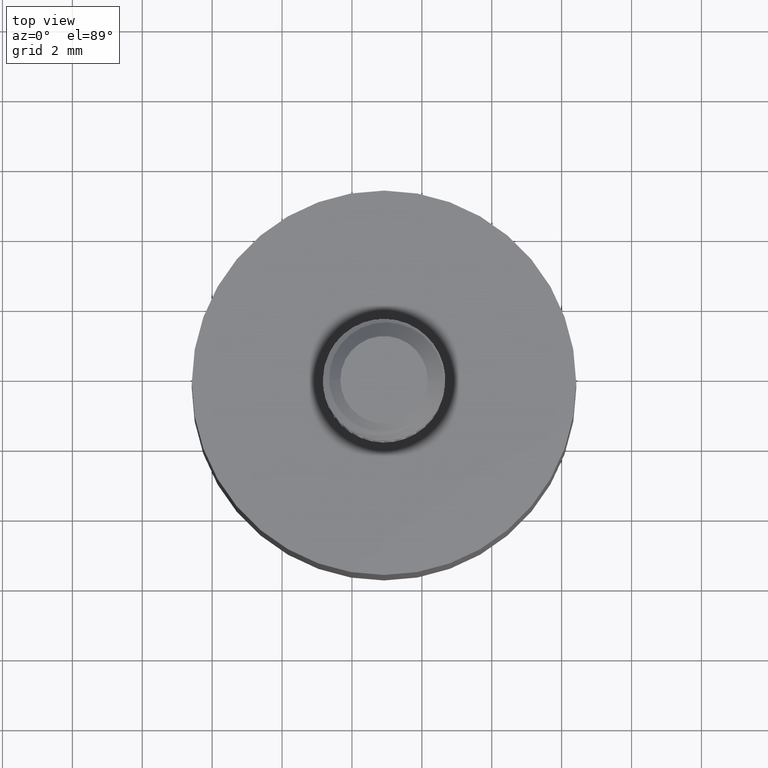
[diagram: clean part render]
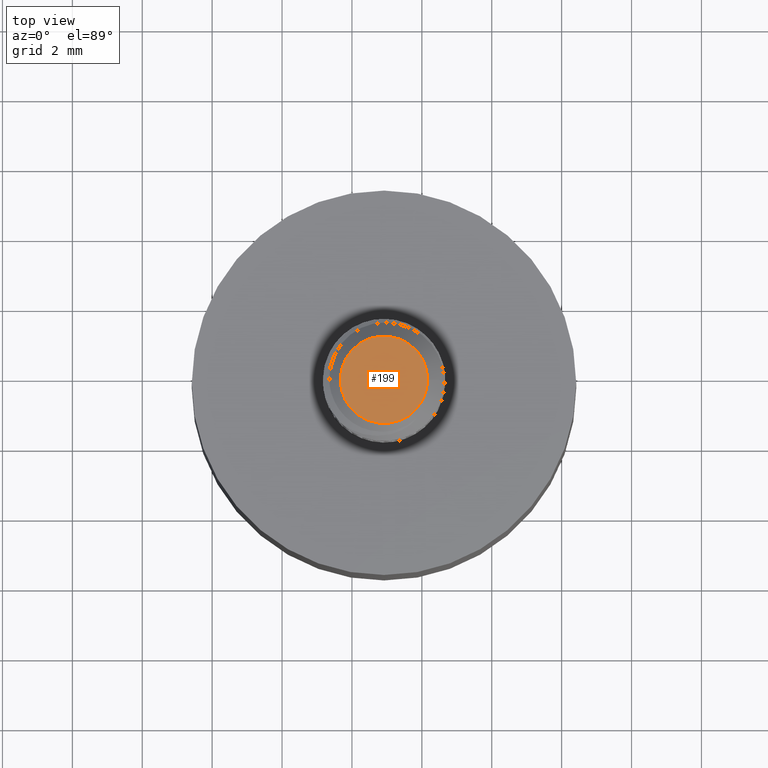
[diagram: same view with one face highlighted and labeled with its STEP entity id]
A machine part, top view. The second image highlights one B-rep face of the part: STEP entity #199.
In plain terms, the highlighted planar face has unit normal (0, 0, 1).
Its self-contained STEP definition (entity closure, byte-faithful):
#146 = EDGE_LOOP ( 'NONE', ( #200, #202 ) ) ;
#199 = ADVANCED_FACE ( 'NONE', ( #1121 ), #1102, .T. ) ;
#200 = ORIENTED_EDGE ( 'NONE', *, *, #201, .T. ) ;
#201 = EDGE_CURVE ( 'NONE', #217, #216, #1151, .T. ) ;
#202 = ORIENTED_EDGE ( 'NONE', *, *, #215, .T. ) ;
#215 = EDGE_CURVE ( 'NONE', #216, #217, #1195, .T. ) ;
#216 = VERTEX_POINT ( 'NONE', #1191 ) ;
#217 = VERTEX_POINT ( 'NONE', #1190 ) ;
#1102 = PLANE ( 'NONE',  #1155 ) ;
#1103 = CARTESIAN_POINT ( 'NONE',  ( 0.03610148486744245400, 0.1494433794018338600, 0.4306012144562502100 ) ) ;
#1121 = FACE_OUTER_BOUND ( 'NONE', #146, .T. ) ;
#1147 = DIRECTION ( 'NONE',  ( 1.000000000000000000, 0.0000000000000000000, 0.0000000000000000000 ) ) ;
#1148 = DIRECTION ( 'NONE',  ( 0.0000000000000000000, 0.0000000000000000000, 1.000000000000000000 ) ) ;
#1149 = CARTESIAN_POINT ( 'NONE',  ( 0.03610148486744245400, 0.1494433794018338600, 0.4306012144562502100 ) ) ;
#1150 = AXIS2_PLACEMENT_3D ( 'NONE', #1149, #1148, #1147 ) ;
#1151 = CIRCLE ( 'NONE', #1150, 0.04921259842519689500 ) ;
#1153 = DIRECTION ( 'NONE',  ( 1.000000000000000000, 0.0000000000000000000, 0.0000000000000000000 ) ) ;
#1154 = DIRECTION ( 'NONE',  ( 0.0000000000000000000, 0.0000000000000000000, 1.000000000000000000 ) ) ;
#1155 = AXIS2_PLACEMENT_3D ( 'NONE', #1103, #1154, #1153 ) ;
#1190 = CARTESIAN_POINT ( 'NONE',  ( -0.01311111355775444000, 0.1494433794018338600, 0.4306012144562502100 ) ) ;
#1191 = CARTESIAN_POINT ( 'NONE',  ( 0.08531408329263935600, 0.1494433794018338600, 0.4306012144562502100 ) ) ;
#1192 = DIRECTION ( 'NONE',  ( 1.000000000000000000, 0.0000000000000000000, 0.0000000000000000000 ) ) ;
#1193 = DIRECTION ( 'NONE',  ( 0.0000000000000000000, 0.0000000000000000000, 1.000000000000000000 ) ) ;
#1194 = AXIS2_PLACEMENT_3D ( 'NONE', #1200, #1193, #1192 ) ;
#1195 = CIRCLE ( 'NONE', #1194, 0.04921259842519689500 ) ;
#1200 = CARTESIAN_POINT ( 'NONE',  ( 0.03610148486744245400, 0.1494433794018338600, 0.4306012144562502100 ) ) ;